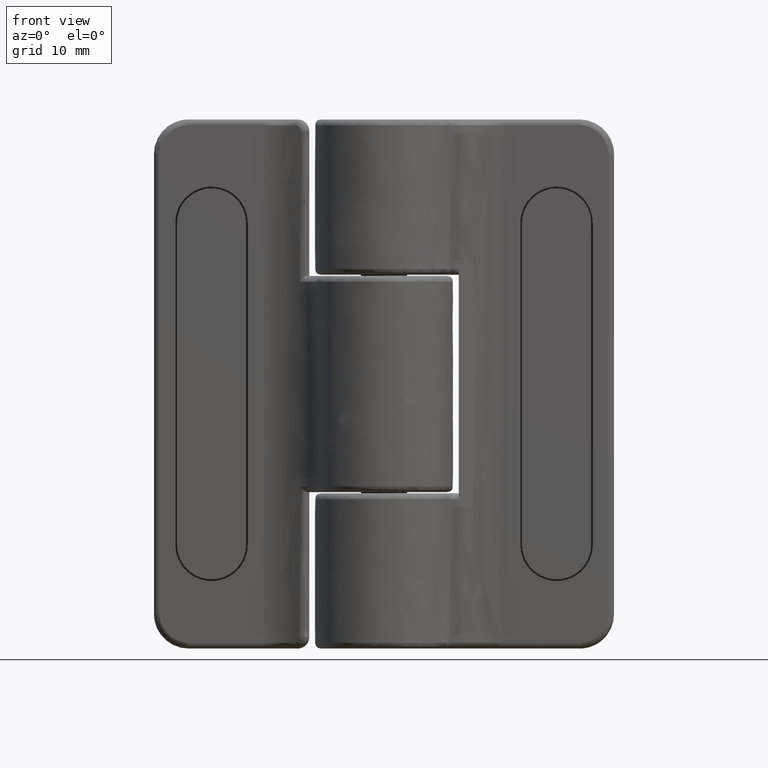
[diagram: clean part render]
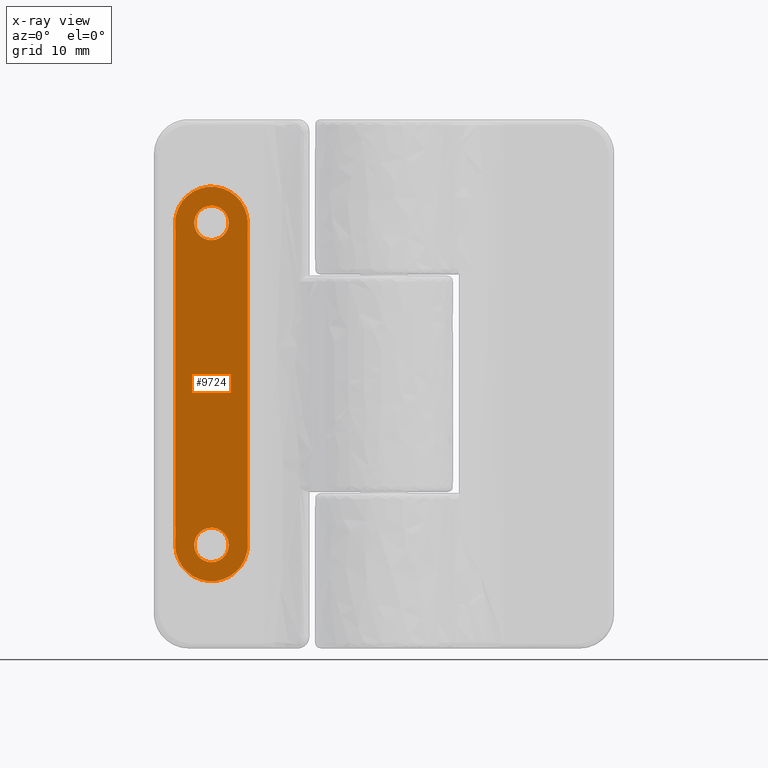
[diagram: x-ray — body ghosted, one internal face saturated and labeled with its STEP entity id]
A machine part, front view, then the same camera in x-ray: the body is ghosted and one INTERNAL B-rep face — a face not visible from any outside direction — is saturated and labeled: STEP entity #9724.
In plain terms, the highlighted face is a freeform B-spline surface patch.
Its self-contained STEP definition (entity closure, byte-faithful):
#3945=CARTESIAN_POINT('',(-16.499758204157139,4.599999999972070,13.973068066363410));
#3946=VERTEX_POINT('',#3945);
#3947=CARTESIAN_POINT('',(-14.999999999995319,4.599999999972070,12.499999999998341));
#3948=VERTEX_POINT('',#3947);
#3949=CARTESIAN_POINT('',(-16.499758204157143,4.599999999972069,13.973068066363414));
#3950=CARTESIAN_POINT('',(-16.473305559128761,4.599999999972070,12.499999999998341));
#3951=CARTESIAN_POINT('',(-14.999999999995319,4.599999999972070,12.499999999998341));
#3959=(BOUNDED_CURVE()B_SPLINE_CURVE(2,(#3949,#3950,#3951),.UNSPECIFIED.,.F.,.U.)B_SPLINE_CURVE_WITH_KNOTS((3,3),(0.253162454045249,0.500000000000000),.UNSPECIFIED.)CURVE()GEOMETRIC_REPRESENTATION_ITEM()RATIONAL_B_SPLINE_CURVE((0.992683645528664,0.710811826565198,1.0))REPRESENTATION_ITEM(''));
#3960=EDGE_CURVE('',#3946,#3948,#3959,.T.);
#3962=CARTESIAN_POINT('',(-13.500241795833499,4.599999999972070,14.026931933633280));
#3963=VERTEX_POINT('',#3962);
#3964=CARTESIAN_POINT('',(-14.999999999995319,4.599999999972070,12.499999999998341));
#3965=CARTESIAN_POINT('',(-13.499999999995319,4.599999999972069,12.499999999998341));
#3966=CARTESIAN_POINT('',(-13.499999999995319,4.599999999972070,13.999999999998341));
#3967=CARTESIAN_POINT('',(-13.499999999995323,4.599999999972070,14.013467052241538));
#3968=CARTESIAN_POINT('',(-13.500241795833501,4.599999999972070,14.026931933633282));
#3976=(BOUNDED_CURVE()B_SPLINE_CURVE(2,(#3964,#3965,#3966,#3967,#3968),.UNSPECIFIED.,.F.,.U.)B_SPLINE_CURVE_WITH_KNOTS((3,2,3),(0.500000000000000,0.750000000000000,0.753162454045249),.UNSPECIFIED.)CURVE()GEOMETRIC_REPRESENTATION_ITEM()RATIONAL_B_SPLINE_CURVE((1.0,0.707106781186548,1.0,0.996294954621350,0.992683645528663))REPRESENTATION_ITEM(''));
#3977=EDGE_CURVE('',#3948,#3963,#3976,.T.);
#4085=CARTESIAN_POINT('',(-14.999999999995319,4.599999999972070,15.499999999998341));
#4086=VERTEX_POINT('',#4085);
#4087=CARTESIAN_POINT('',(-14.999999999995319,4.599999999972070,15.499999999998341));
#4088=CARTESIAN_POINT('',(-16.499999999995325,4.599999999972069,15.499999999998336));
#4089=CARTESIAN_POINT('',(-16.499999999995321,4.599999999972070,13.999999999998341));
#4090=CARTESIAN_POINT('',(-16.499999999995321,4.599999999972069,13.986532947755149));
#4091=CARTESIAN_POINT('',(-16.499758204157143,4.599999999972069,13.973068066363401));
#4099=(BOUNDED_CURVE()B_SPLINE_CURVE(2,(#4087,#4088,#4089,#4090,#4091),.UNSPECIFIED.,.F.,.U.)B_SPLINE_CURVE_WITH_KNOTS((3,2,3),(0.0,0.250000000000000,0.253162454045249),.UNSPECIFIED.)CURVE()GEOMETRIC_REPRESENTATION_ITEM()RATIONAL_B_SPLINE_CURVE((1.0,0.707106781186548,1.0,0.996294954621350,0.992683645528664))REPRESENTATION_ITEM(''));
#4100=EDGE_CURVE('',#4086,#3946,#4099,.T.);
#4175=CARTESIAN_POINT('',(-13.500241795833501,4.599999999972070,14.026931933633282));
#4176=CARTESIAN_POINT('',(-13.526694440861879,4.599999999972070,15.499999999998341));
#4177=CARTESIAN_POINT('',(-14.999999999995319,4.599999999972070,15.499999999998341));
#4185=(BOUNDED_CURVE()B_SPLINE_CURVE(2,(#4175,#4176,#4177),.UNSPECIFIED.,.F.,.U.)B_SPLINE_CURVE_WITH_KNOTS((3,3),(0.753162454045249,1.0),.UNSPECIFIED.)CURVE()GEOMETRIC_REPRESENTATION_ITEM()RATIONAL_B_SPLINE_CURVE((0.992683645528663,0.710811826565198,1.0))REPRESENTATION_ITEM(''));
#4186=EDGE_CURVE('',#3963,#4086,#4185,.T.);
#4209=CARTESIAN_POINT('',(-16.499758204157121,4.599999999972070,-14.026931933636741));
#4210=VERTEX_POINT('',#4209);
#4211=CARTESIAN_POINT('',(-14.999999999995300,4.599999999972070,-15.500000000001799));
#4212=VERTEX_POINT('',#4211);
#4213=CARTESIAN_POINT('',(-16.499758204157114,4.599999999972071,-14.026931933636735));
#4214=CARTESIAN_POINT('',(-16.473305559128750,4.599999999972070,-15.500000000001796));
#4215=CARTESIAN_POINT('',(-14.999999999995300,4.599999999972070,-15.500000000001799));
#4223=(BOUNDED_CURVE()B_SPLINE_CURVE(2,(#4213,#4214,#4215),.UNSPECIFIED.,.F.,.U.)B_SPLINE_CURVE_WITH_KNOTS((3,3),(0.253162454045249,0.500000000000000),.UNSPECIFIED.)CURVE()GEOMETRIC_REPRESENTATION_ITEM()RATIONAL_B_SPLINE_CURVE((0.992683645528664,0.710811826565198,1.0))REPRESENTATION_ITEM(''));
#4224=EDGE_CURVE('',#4210,#4212,#4223,.T.);
#4226=CARTESIAN_POINT('',(-13.500241795833480,4.599999999972070,-13.973068066366871));
#4227=VERTEX_POINT('',#4226);
#4228=CARTESIAN_POINT('',(-14.999999999995300,4.599999999972070,-15.500000000001799));
#4229=CARTESIAN_POINT('',(-13.499999999995300,4.599999999972069,-15.500000000001799));
#4230=CARTESIAN_POINT('',(-13.499999999995300,4.599999999972070,-14.000000000001799));
#4231=CARTESIAN_POINT('',(-13.499999999995303,4.599999999972070,-13.986532947758606));
#4232=CARTESIAN_POINT('',(-13.500241795833482,4.599999999972070,-13.973068066366864));
#4240=(BOUNDED_CURVE()B_SPLINE_CURVE(2,(#4228,#4229,#4230,#4231,#4232),.UNSPECIFIED.,.F.,.U.)B_SPLINE_CURVE_WITH_KNOTS((3,2,3),(0.500000000000000,0.750000000000000,0.753162454045249),.UNSPECIFIED.)CURVE()GEOMETRIC_REPRESENTATION_ITEM()RATIONAL_B_SPLINE_CURVE((1.0,0.707106781186548,1.0,0.996294954621350,0.992683645528663))REPRESENTATION_ITEM(''));
#4241=EDGE_CURVE('',#4212,#4227,#4240,.T.);
#4349=CARTESIAN_POINT('',(-14.999999999995300,4.599999999972070,-12.500000000001799));
#4350=VERTEX_POINT('',#4349);
#4351=CARTESIAN_POINT('',(-14.999999999995300,4.599999999972070,-12.500000000001799));
#4352=CARTESIAN_POINT('',(-16.499999999995300,4.599999999972069,-12.500000000001801));
#4353=CARTESIAN_POINT('',(-16.499999999995300,4.599999999972070,-14.000000000001799));
#4354=CARTESIAN_POINT('',(-16.499999999995300,4.599999999972070,-14.013467052244994));
#4355=CARTESIAN_POINT('',(-16.499758204157114,4.599999999972071,-14.026931933636735));
#4363=(BOUNDED_CURVE()B_SPLINE_CURVE(2,(#4351,#4352,#4353,#4354,#4355),.UNSPECIFIED.,.F.,.U.)B_SPLINE_CURVE_WITH_KNOTS((3,2,3),(0.0,0.250000000000000,0.253162454045249),.UNSPECIFIED.)CURVE()GEOMETRIC_REPRESENTATION_ITEM()RATIONAL_B_SPLINE_CURVE((1.0,0.707106781186548,1.0,0.996294954621350,0.992683645528664))REPRESENTATION_ITEM(''));
#4364=EDGE_CURVE('',#4350,#4210,#4363,.T.);
#4439=CARTESIAN_POINT('',(-13.500241795833478,4.599999999972070,-13.973068066366872));
#4440=CARTESIAN_POINT('',(-13.526694440861856,4.599999999972069,-12.500000000001801));
#4441=CARTESIAN_POINT('',(-14.999999999995300,4.599999999972070,-12.500000000001799));
#4449=(BOUNDED_CURVE()B_SPLINE_CURVE(2,(#4439,#4440,#4441),.UNSPECIFIED.,.F.,.U.)B_SPLINE_CURVE_WITH_KNOTS((3,3),(0.753162454045249,1.0),.UNSPECIFIED.)CURVE()GEOMETRIC_REPRESENTATION_ITEM()RATIONAL_B_SPLINE_CURVE((0.992683645528664,0.710811826565198,1.0))REPRESENTATION_ITEM(''));
#4450=EDGE_CURVE('',#4227,#4350,#4449,.T.);
#9642=CARTESIAN_POINT('',(-18.464684987796439,4.599999999972030,18.863284933518141));
#9643=CARTESIAN_POINT('',(-11.535314843226191,4.599999999972030,18.863284933518141));
#9644=CARTESIAN_POINT('',(-18.464684987796439,4.599999999972030,-18.863285853519201));
#9645=CARTESIAN_POINT('',(-11.535314843226191,4.599999999972030,-18.863285853519201));
#9646=B_SPLINE_SURFACE_WITH_KNOTS('',1,1,((#9642,#9644),(#9643,#9645)),.UNSPECIFIED.,.F.,.F.,.U.,(2,2),(2,2),(0.0,6.929370144570241),(0.0,37.726570787037339),.UNSPECIFIED.);
#9647=CARTESIAN_POINT('',(-11.849999999995299,4.599999999972070,-14.000000000000780));
#9648=VERTEX_POINT('',#9647);
#9649=CARTESIAN_POINT('',(-11.850000000006499,4.599999999972070,13.999999999999460));
#9650=VERTEX_POINT('',#9649);
#9651=CARTESIAN_POINT('',(-11.849999999995299,4.599999999972070,-14.000000000000780));
#9652=CARTESIAN_POINT('',(-11.850000000006499,4.599999999972070,13.999999999999460));
#9653=QUASI_UNIFORM_CURVE('',1,(#9651,#9652),.UNSPECIFIED.,.F.,.U.);
#9654=EDGE_CURVE('',#9648,#9650,#9653,.T.);
#9655=ORIENTED_EDGE('',*,*,#9654,.T.);
#9656=CARTESIAN_POINT('',(-18.150000000006500,4.599999999972070,13.999999999997399));
#9657=VERTEX_POINT('',#9656);
#9658=CARTESIAN_POINT('',(-11.850000000006499,4.599999999972070,13.999999999999460));
#9659=CARTESIAN_POINT('',(-11.849917971169001,4.599999999972064,14.270602100817460));
#9660=CARTESIAN_POINT('',(-11.915162412558541,4.599999999972070,14.773089993742820));
#9661=CARTESIAN_POINT('',(-12.171768935195299,4.599999999972081,15.438353181678510));
#9662=CARTESIAN_POINT('',(-12.517765054706990,4.599999999972044,15.970148170729679));
#9663=CARTESIAN_POINT('',(-12.885964983603779,4.599999999972081,16.352129803702091));
#9664=CARTESIAN_POINT('',(-13.317467193470190,4.599999999972058,16.680453879421549));
#9665=CARTESIAN_POINT('',(-13.775982611040400,4.599999999972095,16.921934937678099));
#9666=CARTESIAN_POINT('',(-14.294548627729609,4.599999999972042,17.082692264946701));
#9667=CARTESIAN_POINT('',(-14.844116345105300,4.599999999972082,17.164244711346040));
#9668=CARTESIAN_POINT('',(-15.427112375944450,4.599999999972074,17.142778748404631));
#9669=CARTESIAN_POINT('',(-16.068260623072330,4.599999999972071,16.986347088917832));
#9670=CARTESIAN_POINT('',(-16.619063809860020,4.599999999972064,16.725830364220361));
#9671=CARTESIAN_POINT('',(-17.107289773728262,4.599999999971860,16.363723941610029));
#9672=CARTESIAN_POINT('',(-17.453022266717181,4.599999999972152,15.996086934741410));
#9673=CARTESIAN_POINT('',(-17.723239800352260,4.599999999972145,15.602204244776059));
#9674=CARTESIAN_POINT('',(-17.949832403168561,4.599999999971579,15.152119363168969));
#9675=CARTESIAN_POINT('',(-18.111950146463620,4.599999999973325,14.605612502148981));
#9676=CARTESIAN_POINT('',(-18.150014229244011,4.599999999970859,14.193279240628611));
#9677=CARTESIAN_POINT('',(-18.150000000006500,4.599999999972070,13.999999999997399));
#9678=B_SPLINE_CURVE_WITH_KNOTS('',3,(#9658,#9659,#9660,#9661,#9662,#9663,#9664,#9665,#9666,#9667,#9668,#9669,#9670,#9671,#9672,#9673,#9674,#9675,#9676,#9677),.UNSPECIFIED.,.F.,.U.,(4,1,1,1,1,1,1,1,1,1,1,1,1,1,1,1,1,4),(0.000000099914832,0.811784984638351,1.507603991121190,2.126119484846888,2.705963146294600,3.092542021244154,3.749677268669283,4.252219997426221,4.716099930299321,5.411922986019122,5.991783481097805,6.687575234195908,7.228771930108271,7.808617901550931,8.195190523181022,8.659071286968960,9.316237623476491,9.896078952156373),.UNSPECIFIED.);
#9679=EDGE_CURVE('',#9650,#9657,#9678,.T.);
#9680=ORIENTED_EDGE('',*,*,#9679,.T.);
#9681=CARTESIAN_POINT('',(-18.149999999995401,4.599999999972070,-14.000000000002800));
#9682=VERTEX_POINT('',#9681);
#9683=CARTESIAN_POINT('',(-18.150000000006500,4.599999999972070,13.999999999997399));
#9684=CARTESIAN_POINT('',(-18.149999999995401,4.599999999972070,-14.000000000002800));
#9685=QUASI_UNIFORM_CURVE('',1,(#9683,#9684),.UNSPECIFIED.,.F.,.U.);
#9686=EDGE_CURVE('',#9657,#9682,#9685,.T.);
#9687=ORIENTED_EDGE('',*,*,#9686,.T.);
#9688=CARTESIAN_POINT('',(-18.149999999995401,4.599999999972070,-14.000000000002800));
#9689=CARTESIAN_POINT('',(-18.150052805601661,4.599999999972061,-14.244824414336829));
#9690=CARTESIAN_POINT('',(-18.103182511054591,4.599999999972085,-14.644240235243929));
#9691=CARTESIAN_POINT('',(-17.919787748225570,4.599999999972055,-15.223151464832871));
#9692=CARTESIAN_POINT('',(-17.645526266310139,4.599999999972064,-15.751849827283660));
#9693=CARTESIAN_POINT('',(-17.267181413599040,4.599999999972062,-16.212830394150551));
#9694=CARTESIAN_POINT('',(-16.832170199922341,4.599999999972066,-16.578819623944781));
#9695=CARTESIAN_POINT('',(-16.333003963448739,4.599999999972082,-16.878069856441229));
#9696=CARTESIAN_POINT('',(-15.782152486733150,4.599999999972051,-17.071349248588142));
#9697=CARTESIAN_POINT('',(-15.168663298054360,4.599999999972112,-17.162334766303019));
#9698=CARTESIAN_POINT('',(-14.560032065468549,4.599999999972036,-17.143692297103900));
#9699=CARTESIAN_POINT('',(-13.868354314861939,4.599999999972092,-16.970447441019591));
#9700=CARTESIAN_POINT('',(-13.292170223273169,4.599999999972065,-16.671499943811408));
#9701=CARTESIAN_POINT('',(-12.838281498913471,4.599999999972066,-16.308135655580280));
#9702=CARTESIAN_POINT('',(-12.427413887065940,4.599999999972094,-15.860558438901119));
#9703=CARTESIAN_POINT('',(-12.086969594352590,4.599999999972004,-15.276356626454970));
#9704=CARTESIAN_POINT('',(-11.888055086025780,4.599999999972201,-14.605607694110910));
#9705=CARTESIAN_POINT('',(-11.849986612580420,4.599999999971980,-14.193279573640590));
#9706=CARTESIAN_POINT('',(-11.849999999995299,4.599999999972070,-14.000000000000780));
#9707=B_SPLINE_CURVE_WITH_KNOTS('',3,(#9688,#9689,#9690,#9691,#9692,#9693,#9694,#9695,#9696,#9697,#9698,#9699,#9700,#9701,#9702,#9703,#9704,#9705,#9706),.UNSPECIFIED.,.F.,.U.,(4,1,1,1,1,1,1,1,1,1,1,1,1,1,1,1,4),(0.000000100042998,0.734459883959374,1.198346256516711,1.816861795221790,2.512683197151458,2.976575701151405,3.517725215595861,4.252219997500079,4.716099930366934,5.373264572527420,6.069083157981041,6.842204854478617,7.306074657738943,7.808617901578102,8.659071286984860,9.316237623483701,9.896078952156133),.UNSPECIFIED.);
#9708=EDGE_CURVE('',#9682,#9648,#9707,.T.);
#9709=ORIENTED_EDGE('',*,*,#9708,.T.);
#9710=EDGE_LOOP('',(#9655,#9680,#9687,#9709));
#9711=FACE_OUTER_BOUND('',#9710,.T.);
#9712=ORIENTED_EDGE('',*,*,#4241,.F.);
#9713=ORIENTED_EDGE('',*,*,#4224,.F.);
#9714=ORIENTED_EDGE('',*,*,#4364,.F.);
#9715=ORIENTED_EDGE('',*,*,#4450,.F.);
#9716=EDGE_LOOP('',(#9712,#9713,#9714,#9715));
#9717=FACE_BOUND('',#9716,.T.);
#9718=ORIENTED_EDGE('',*,*,#3977,.F.);
#9719=ORIENTED_EDGE('',*,*,#3960,.F.);
#9720=ORIENTED_EDGE('',*,*,#4100,.F.);
#9721=ORIENTED_EDGE('',*,*,#4186,.F.);
#9722=EDGE_LOOP('',(#9718,#9719,#9720,#9721));
#9723=FACE_BOUND('',#9722,.T.);
#9724=ADVANCED_FACE('',(#9711,#9717,#9723),#9646,.F.);